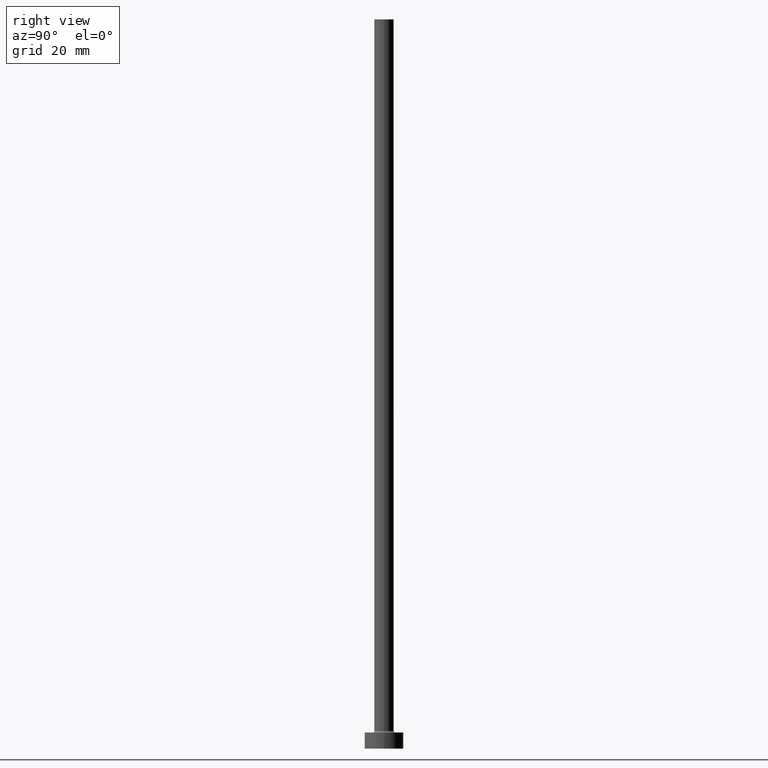
[diagram: clean part render]
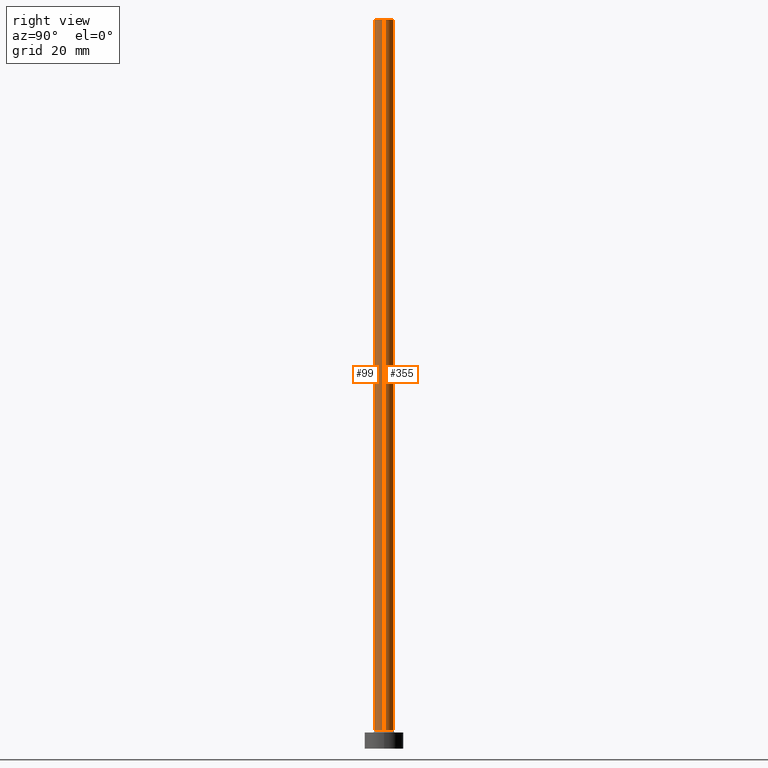
[diagram: same view with one multi-face feature highlighted, each face labeled with its STEP entity id]
A machine part, right view. The highlighted faces form ONE feature: a constant-radius fillet chain: 2 tangent blend faces with common blend radius 3 mm. The faces share edges in the B-rep.
Their STEP definitions:
[1] entity #355 (Cylinder):
#3 = ORIENTED_EDGE ( 'NONE', *, *, #32, .T. ) ;
#13 = DIRECTION ( 'NONE',  ( 0.000000000000000000, 0.000000000000000000, 1.000000000000000000 ) ) ;
#32 = EDGE_CURVE ( 'NONE', #37, #391, #242, .T. ) ;
#37 = VERTEX_POINT ( 'NONE', #269 ) ;
#43 = EDGE_LOOP ( 'NONE', ( #323, #301, #3, #58 ) ) ;
#52 = CIRCLE ( 'NONE', #295, 3.000000000000000444 ) ;
#58 = ORIENTED_EDGE ( 'NONE', *, *, #210, .F. ) ;
#61 = EDGE_CURVE ( 'NONE', #164, #37, #178, .T. ) ;
#98 = AXIS2_PLACEMENT_3D ( 'NONE', #197, #232, #377 ) ;
#107 = VECTOR ( 'NONE', #429, 1000.000000000000000 ) ;
#153 = CARTESIAN_POINT ( 'NONE',  ( 0.000000000000000000, 0.000000000000000000, 225.0000000000000000 ) ) ;
#158 = LINE ( 'NONE', #445, #172 ) ;
#164 = VERTEX_POINT ( 'NONE', #246 ) ;
#172 = VECTOR ( 'NONE', #412, 1000.000000000000000 ) ;
#178 = LINE ( 'NONE', #286, #107 ) ;
#181 = CARTESIAN_POINT ( 'NONE',  ( -3.000000000000000444, 0.000000000000000000, 5.500000000000005329 ) ) ;
#192 = CYLINDRICAL_SURFACE ( 'NONE', #98, 3.000000000000000444 ) ;
#197 = CARTESIAN_POINT ( 'NONE',  ( 0.000000000000000000, 0.000000000000000000, 225.0000000000000000 ) ) ;
#200 = CARTESIAN_POINT ( 'NONE',  ( 0.000000000000000000, 0.000000000000000000, 5.500000000000005329 ) ) ;
#205 = DIRECTION ( 'NONE',  ( 1.000000000000000000, 0.000000000000000000, 0.000000000000000000 ) ) ;
#210 = EDGE_CURVE ( 'NONE', #266, #391, #158, .T. ) ;
#232 = DIRECTION ( 'NONE',  ( -0.000000000000000000, -0.000000000000000000, -1.000000000000000000 ) ) ;
#234 = DIRECTION ( 'NONE',  ( 1.000000000000000000, 0.000000000000000000, 0.000000000000000000 ) ) ;
#238 = CARTESIAN_POINT ( 'NONE',  ( -3.000000000000000444, 0.000000000000000000, 225.0000000000000000 ) ) ;
#242 = CIRCLE ( 'NONE', #261, 3.000000000000000444 ) ;
#246 = CARTESIAN_POINT ( 'NONE',  ( 3.000000000000000444, 3.673940397442060361E-16, 225.0000000000000000 ) ) ;
#260 = DIRECTION ( 'NONE',  ( 0.000000000000000000, 0.000000000000000000, 1.000000000000000000 ) ) ;
#261 = AXIS2_PLACEMENT_3D ( 'NONE', #200, #260, #234 ) ;
#266 = VERTEX_POINT ( 'NONE', #238 ) ;
#269 = CARTESIAN_POINT ( 'NONE',  ( 3.000000000000000444, 3.673940397442060361E-16, 5.500000000000005329 ) ) ;
#286 = CARTESIAN_POINT ( 'NONE',  ( 3.000000000000000444, 3.673940397442060361E-16, 225.0000000000000000 ) ) ;
#295 = AXIS2_PLACEMENT_3D ( 'NONE', #153, #13, #205 ) ;
#301 = ORIENTED_EDGE ( 'NONE', *, *, #61, .T. ) ;
#323 = ORIENTED_EDGE ( 'NONE', *, *, #444, .F. ) ;
#355 = ADVANCED_FACE ( 'NONE', ( #374 ), #192, .T. ) ;
#374 = FACE_OUTER_BOUND ( 'NONE', #43, .T. ) ;
#377 = DIRECTION ( 'NONE',  ( -1.000000000000000000, 0.000000000000000000, 0.000000000000000000 ) ) ;
#391 = VERTEX_POINT ( 'NONE', #181 ) ;
#412 = DIRECTION ( 'NONE',  ( -0.000000000000000000, -0.000000000000000000, -1.000000000000000000 ) ) ;
#429 = DIRECTION ( 'NONE',  ( -0.000000000000000000, -0.000000000000000000, -1.000000000000000000 ) ) ;
#444 = EDGE_CURVE ( 'NONE', #164, #266, #52, .T. ) ;
#445 = CARTESIAN_POINT ( 'NONE',  ( -3.000000000000000444, 0.000000000000000000, 225.0000000000000000 ) ) ;
[2] entity #99 (Cylinder):
#19 = EDGE_LOOP ( 'NONE', ( #279, #171, #223, #461 ) ) ;
#37 = VERTEX_POINT ( 'NONE', #269 ) ;
#50 = EDGE_CURVE ( 'NONE', #266, #164, #294, .T. ) ;
#61 = EDGE_CURVE ( 'NONE', #164, #37, #178, .T. ) ;
#64 = DIRECTION ( 'NONE',  ( -0.000000000000000000, -0.000000000000000000, -1.000000000000000000 ) ) ;
#83 = DIRECTION ( 'NONE',  ( 1.000000000000000000, 0.000000000000000000, 0.000000000000000000 ) ) ;
#99 = ADVANCED_FACE ( 'NONE', ( #457 ), #236, .T. ) ;
#107 = VECTOR ( 'NONE', #429, 1000.000000000000000 ) ;
#118 = DIRECTION ( 'NONE',  ( 0.000000000000000000, 0.000000000000000000, 1.000000000000000000 ) ) ;
#136 = DIRECTION ( 'NONE',  ( 0.000000000000000000, 0.000000000000000000, 1.000000000000000000 ) ) ;
#147 = CARTESIAN_POINT ( 'NONE',  ( 0.000000000000000000, 0.000000000000000000, 5.500000000000005329 ) ) ;
#158 = LINE ( 'NONE', #445, #172 ) ;
#164 = VERTEX_POINT ( 'NONE', #246 ) ;
#166 = AXIS2_PLACEMENT_3D ( 'NONE', #417, #64, #385 ) ;
#171 = ORIENTED_EDGE ( 'NONE', *, *, #50, .F. ) ;
#172 = VECTOR ( 'NONE', #412, 1000.000000000000000 ) ;
#178 = LINE ( 'NONE', #286, #107 ) ;
#181 = CARTESIAN_POINT ( 'NONE',  ( -3.000000000000000444, 0.000000000000000000, 5.500000000000005329 ) ) ;
#210 = EDGE_CURVE ( 'NONE', #266, #391, #158, .T. ) ;
#223 = ORIENTED_EDGE ( 'NONE', *, *, #210, .T. ) ;
#236 = CYLINDRICAL_SURFACE ( 'NONE', #166, 3.000000000000000444 ) ;
#238 = CARTESIAN_POINT ( 'NONE',  ( -3.000000000000000444, 0.000000000000000000, 225.0000000000000000 ) ) ;
#246 = CARTESIAN_POINT ( 'NONE',  ( 3.000000000000000444, 3.673940397442060361E-16, 225.0000000000000000 ) ) ;
#266 = VERTEX_POINT ( 'NONE', #238 ) ;
#269 = CARTESIAN_POINT ( 'NONE',  ( 3.000000000000000444, 3.673940397442060361E-16, 5.500000000000005329 ) ) ;
#274 = AXIS2_PLACEMENT_3D ( 'NONE', #147, #118, #434 ) ;
#279 = ORIENTED_EDGE ( 'NONE', *, *, #61, .F. ) ;
#286 = CARTESIAN_POINT ( 'NONE',  ( 3.000000000000000444, 3.673940397442060361E-16, 225.0000000000000000 ) ) ;
#294 = CIRCLE ( 'NONE', #350, 3.000000000000000444 ) ;
#303 = CIRCLE ( 'NONE', #274, 3.000000000000000444 ) ;
#320 = EDGE_CURVE ( 'NONE', #391, #37, #303, .T. ) ;
#350 = AXIS2_PLACEMENT_3D ( 'NONE', #384, #136, #83 ) ;
#384 = CARTESIAN_POINT ( 'NONE',  ( 0.000000000000000000, 0.000000000000000000, 225.0000000000000000 ) ) ;
#385 = DIRECTION ( 'NONE',  ( -1.000000000000000000, 0.000000000000000000, 0.000000000000000000 ) ) ;
#391 = VERTEX_POINT ( 'NONE', #181 ) ;
#412 = DIRECTION ( 'NONE',  ( -0.000000000000000000, -0.000000000000000000, -1.000000000000000000 ) ) ;
#417 = CARTESIAN_POINT ( 'NONE',  ( 0.000000000000000000, 0.000000000000000000, 225.0000000000000000 ) ) ;
#429 = DIRECTION ( 'NONE',  ( -0.000000000000000000, -0.000000000000000000, -1.000000000000000000 ) ) ;
#434 = DIRECTION ( 'NONE',  ( 1.000000000000000000, 0.000000000000000000, 0.000000000000000000 ) ) ;
#445 = CARTESIAN_POINT ( 'NONE',  ( -3.000000000000000444, 0.000000000000000000, 225.0000000000000000 ) ) ;
#457 = FACE_OUTER_BOUND ( 'NONE', #19, .T. ) ;
#461 = ORIENTED_EDGE ( 'NONE', *, *, #320, .T. ) ;